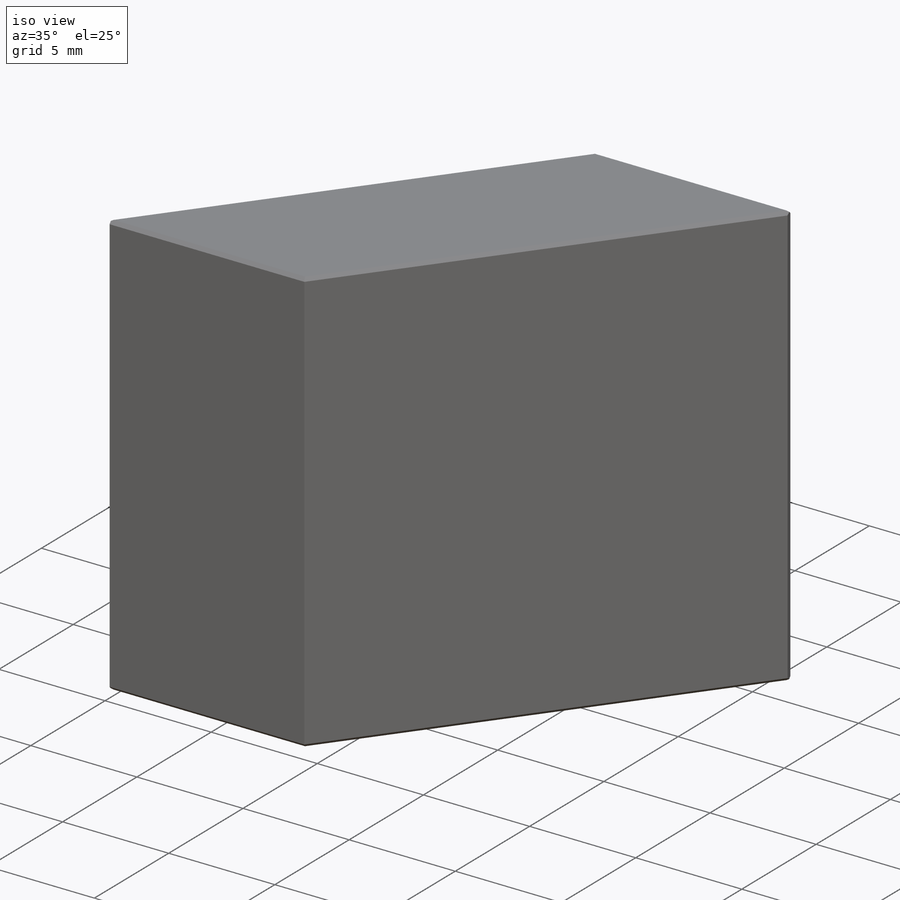
[diagram: iso view]
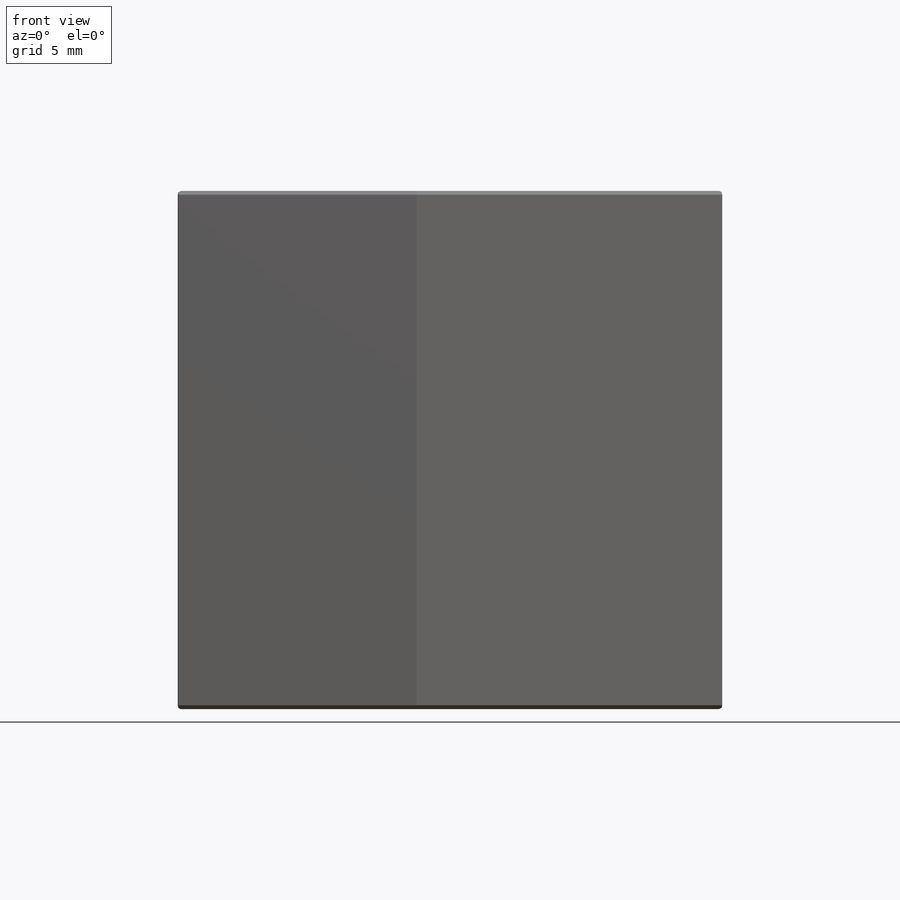
[diagram: front view]
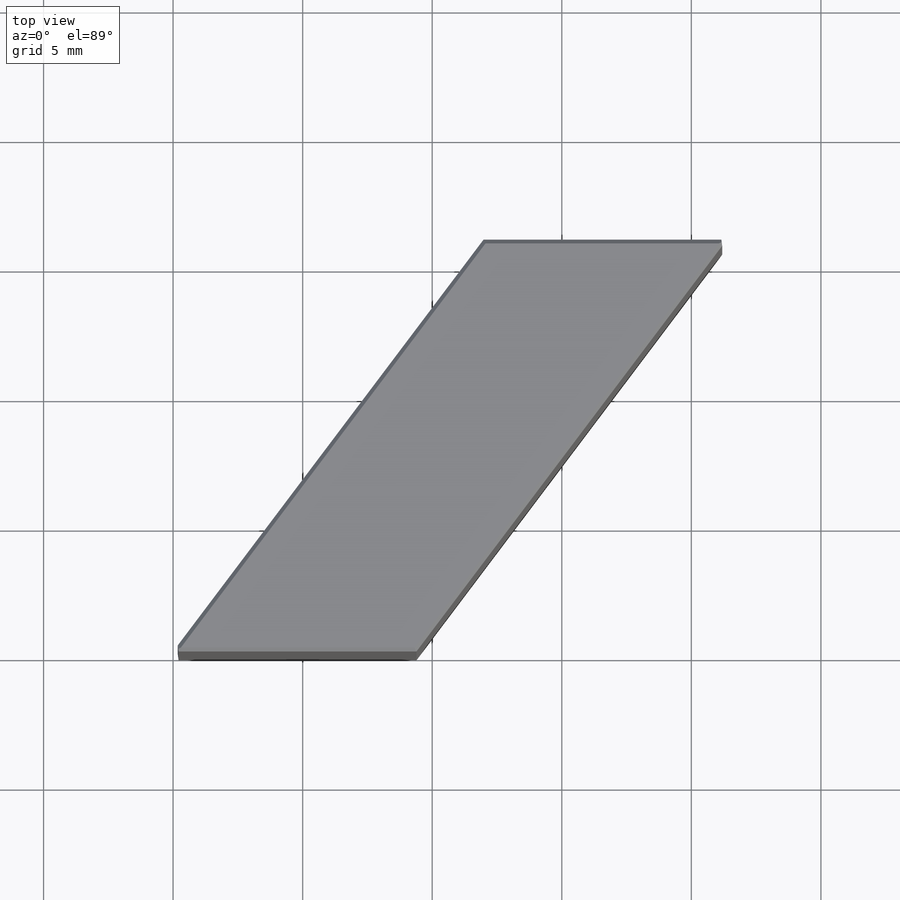
[diagram: top view]
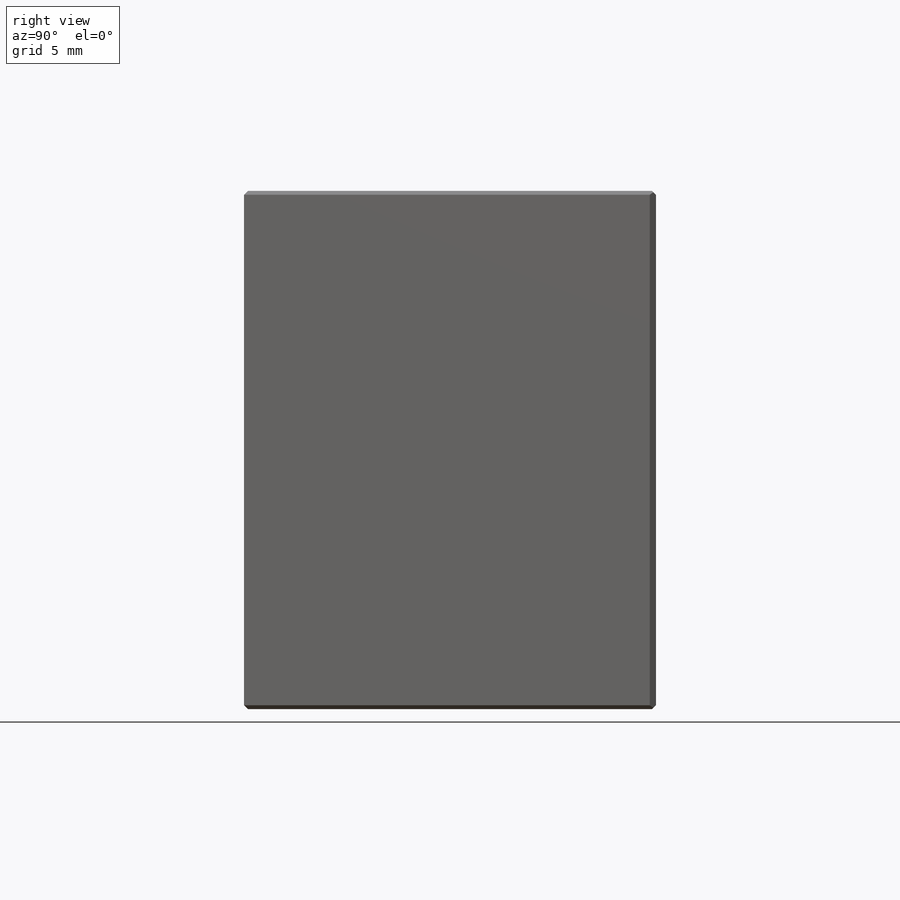
[diagram: right view]
SOLIDWORKS PART (.sldprt)
format: sldprt  version: not decoded by parser v0  size: 164,864 bytes
history: native  units: mm
features: plane x3, extrude x2, chamfer x2, material x1, sketch x1 (+12 scaffold rows collapsed)
feature tree (21):
  scaffold x12  (default folders/planes/origin — collapsed)
  material  "Стекло"
  plane  "Спереди"
  plane  "Сверху"
  plane  "Справа"
  sketch  "Эскиз1"  dims[c1.D1=15.9mm c1.D2=7.5mm c2.D2=53.0deg c3.D2=7.5mm c3.D3=~9.391017mm c4.D3=53.0deg c4.D4=~5.498571mm]
  extrude  "Вытянуть1"  Depth=20mm
  chamfer  "Фаска1"  Distance=0.15mm Angle=45deg
  extrude  "Фаска2"  Depth=0.3mm Material_Int=0mm Material_Ext=0mm Surface=0mm
  chamfer  "OptisFaceAttribut_1"  Distance=0mm Surface=0mm Material_Int=0mm Material_Ext=0mm
decode coverage: 5 of 5 modeling features carry decoded parameters
note: ~ marks probable driven/reference dimensions
note: suppression state not decoded; provenance and decode notes live in map.json
